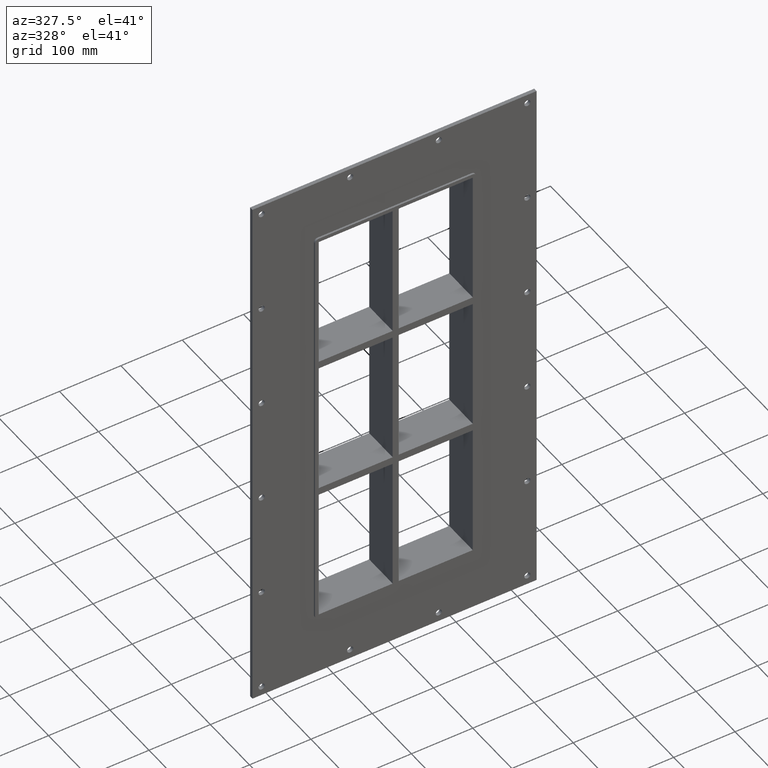
[diagram: clean part render]
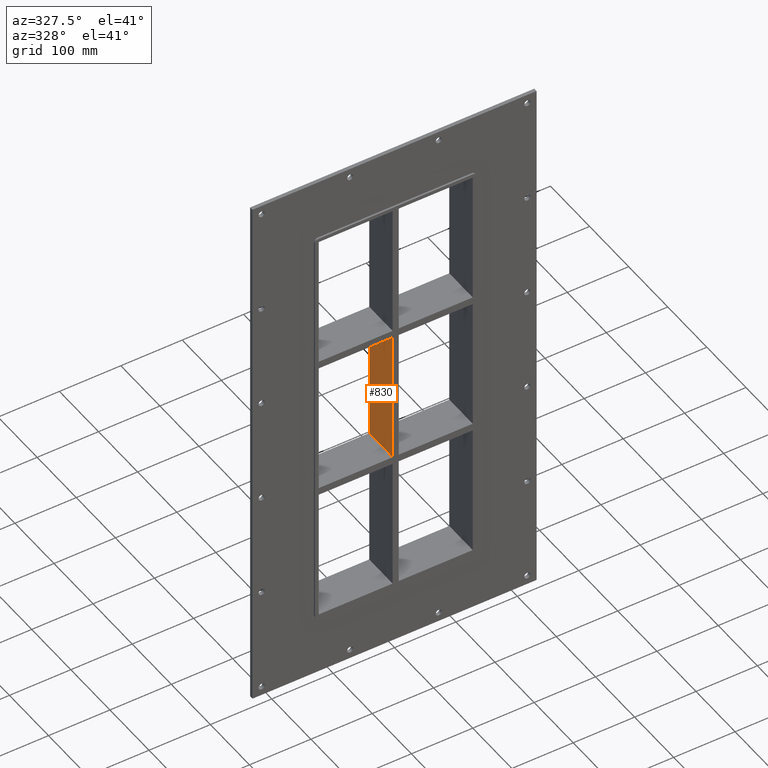
[diagram: same view with one face highlighted and labeled with its STEP entity id]
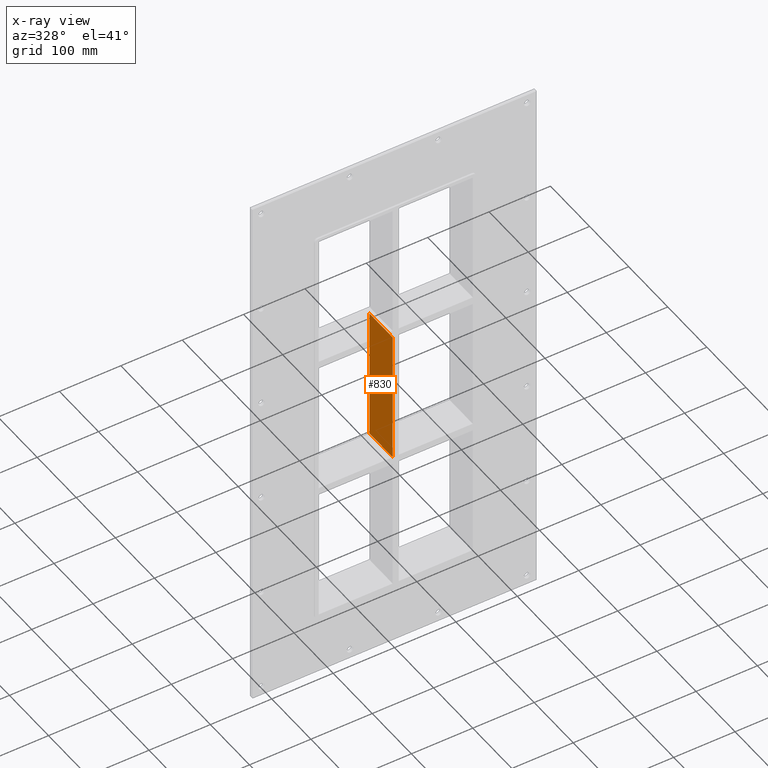
[diagram: x-ray of the same camera — body ghosted, the highlighted face saturated]
A machine part, auxiliary view. The second image highlights one B-rep face of the part: STEP entity #830.
The next image is the same camera in x-ray: the body ghosted, the highlighted face saturated — about 0% of this face is hidden behind the body in this view.
In plain terms, the highlighted planar face has unit normal (-1, 0, 0).
Its self-contained STEP definition (entity closure, byte-faithful):
#641=CARTESIAN_POINT('',(-5.000000000001368,-3.0,108.99999999999068));
#642=VERTEX_POINT('',#641);
#643=CARTESIAN_POINT('',(-5.000000000001361,57.0,108.99999999999068));
#644=VERTEX_POINT('',#643);
#645=CARTESIAN_POINT('',(-5.000000000001359,-3.0,108.99999999999068));
#646=DIRECTION('',(0.0,1.0,0.0));
#647=VECTOR('',#646,60.0);
#648=LINE('',#645,#647);
#649=EDGE_CURVE('',#642,#644,#648,.T.);
#800=CARTESIAN_POINT('',(-5.000000000001279,-3.0,-339.00000000000006));
#801=DIRECTION('',(-1.0,0.0,0.0));
#802=DIRECTION('',(0.0,0.0,1.0));
#803=AXIS2_PLACEMENT_3D('',#800,#801,#802);
#804=PLANE('',#803);
#805=ORIENTED_EDGE('',*,*,#649,.T.);
#806=CARTESIAN_POINT('',(-5.000000000001315,57.0,-109.00000000000006));
#807=VERTEX_POINT('',#806);
#808=CARTESIAN_POINT('',(-5.000000000001321,57.0,-109.00000000000006));
#809=DIRECTION('',(0.0,0.0,1.0));
#810=VECTOR('',#809,217.99999999999073);
#811=LINE('',#808,#810);
#812=EDGE_CURVE('',#807,#644,#811,.T.);
#813=ORIENTED_EDGE('',*,*,#812,.F.);
#814=CARTESIAN_POINT('',(-5.000000000001315,-3.0,-109.00000000000006));
#815=VERTEX_POINT('',#814);
#816=CARTESIAN_POINT('',(-5.000000000001323,57.0,-109.00000000000006));
#817=DIRECTION('',(0.0,-1.0,0.0));
#818=VECTOR('',#817,60.0);
#819=LINE('',#816,#818);
#820=EDGE_CURVE('',#807,#815,#819,.T.);
#821=ORIENTED_EDGE('',*,*,#820,.T.);
#822=CARTESIAN_POINT('',(-5.000000000001321,-3.0,-109.00000000000006));
#823=DIRECTION('',(0.0,0.0,1.0));
#824=VECTOR('',#823,217.99999999999073);
#825=LINE('',#822,#824);
#826=EDGE_CURVE('',#815,#642,#825,.T.);
#827=ORIENTED_EDGE('',*,*,#826,.T.);
#828=EDGE_LOOP('',(#805,#813,#821,#827));
#829=FACE_OUTER_BOUND('',#828,.T.);
#830=ADVANCED_FACE('',(#829),#804,.T.);